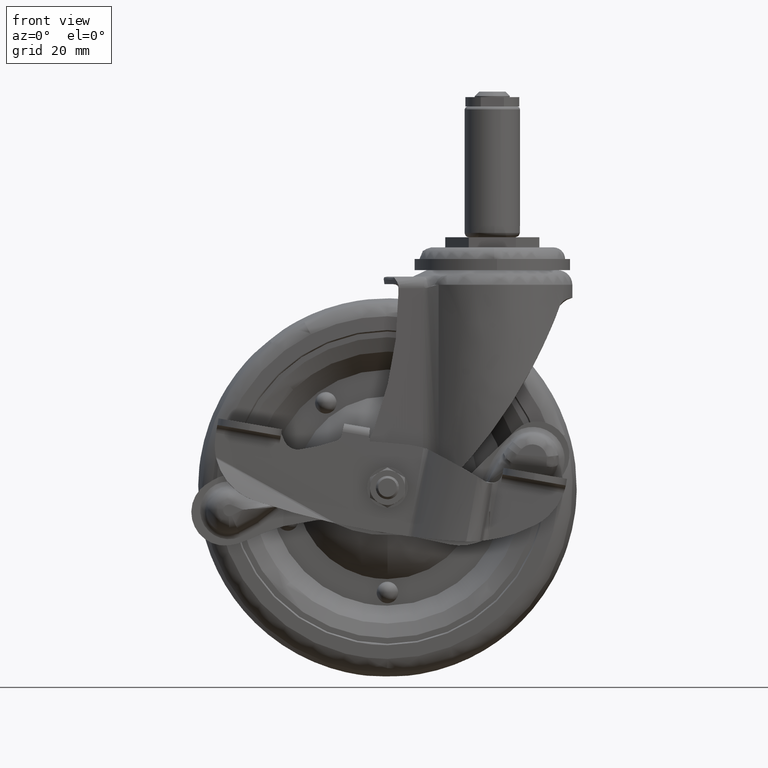
[diagram: clean part render]
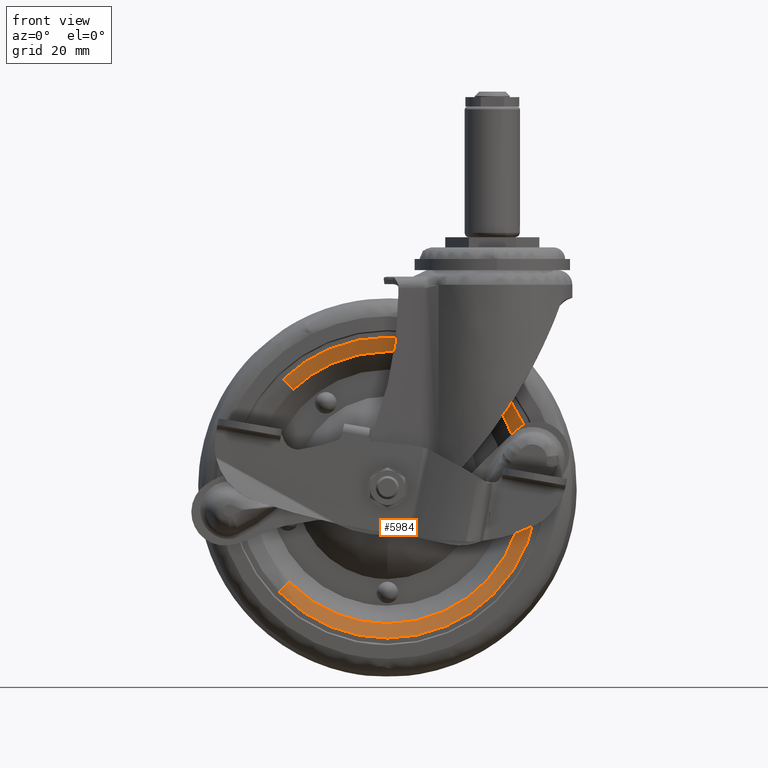
[diagram: same view with one face highlighted and labeled with its STEP entity id]
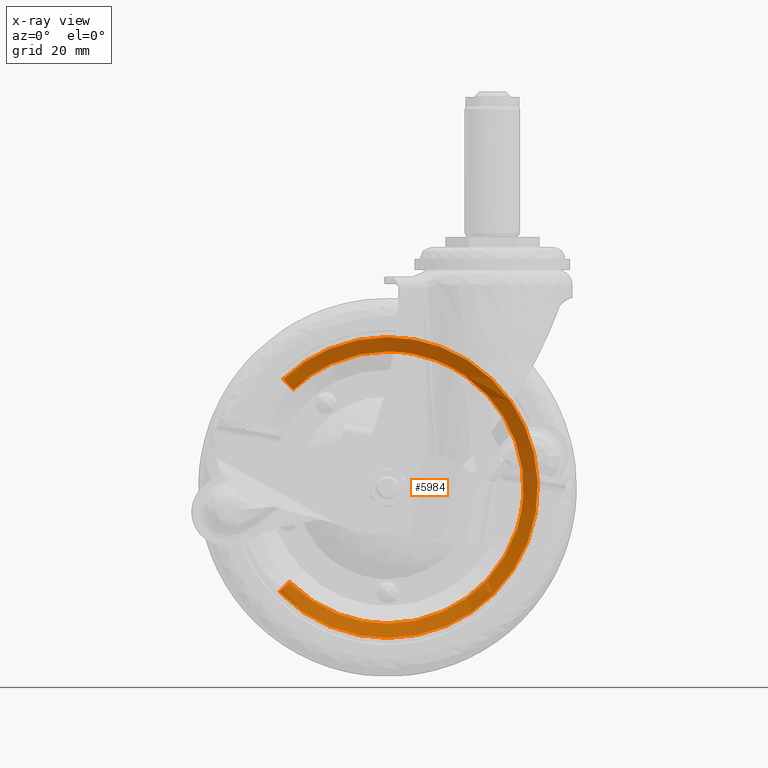
[diagram: x-ray of the same camera — body ghosted, the highlighted face saturated]
A machine part, front view. The second image highlights one B-rep face of the part: STEP entity #5984.
The next image is the same camera in x-ray: the body ghosted, the highlighted face saturated — about 1% of this face is hidden behind the body in this view.
In plain terms, the highlighted face is a freeform B-spline surface patch.
Its self-contained STEP definition (entity closure, byte-faithful):
#3922=CARTESIAN_POINT('',(-19.576463500932370,-9.949747468313262,-42.274356688528300));
#3923=VERTEX_POINT('',#3922);
#3924=CARTESIAN_POINT('',(-36.0,-9.949747468305830,-39.291721154953713));
#3925=VERTEX_POINT('',#3924);
#3926=CARTESIAN_POINT('',(-19.576463500932373,-9.949747468313262,-42.274356688528307));
#3927=CARTESIAN_POINT('',(-27.517397429003616,-9.949747468305832,-39.291721154953706));
#3928=CARTESIAN_POINT('',(-36.0,-9.949747468305830,-39.291721154953713));
#3936=(BOUNDED_CURVE()B_SPLINE_CURVE(2,(#3926,#3927,#3928),.UNSPECIFIED.,.F.,.U.)B_SPLINE_CURVE_WITH_KNOTS((3,3),(0.440284170898375,0.500000000000000),.UNSPECIFIED.)CURVE()GEOMETRIC_REPRESENTATION_ITEM()RATIONAL_B_SPLINE_CURVE((0.893499554635112,0.930038554401244,1.0))REPRESENTATION_ITEM(''));
#3937=EDGE_CURVE('',#3923,#3925,#3936,.T.);
#3939=CARTESIAN_POINT('',(-68.399482437180566,-9.949747469261986,-52.355657792149870));
#3940=VERTEX_POINT('',#3939);
#3941=CARTESIAN_POINT('',(-36.0,-9.949747468305830,-39.291721154953713));
#3942=CARTESIAN_POINT('',(-54.833524656207800,-9.949747468305830,-39.291721154953706));
#3943=CARTESIAN_POINT('',(-68.399482437180566,-9.949747469261986,-52.355657792149870));
#3951=(BOUNDED_CURVE()B_SPLINE_CURVE(2,(#3941,#3942,#3943),.UNSPECIFIED.,.F.,.U.)B_SPLINE_CURVE_WITH_KNOTS((3,3),(0.500000000000000,0.622155737437386),.UNSPECIFIED.)CURVE()GEOMETRIC_REPRESENTATION_ITEM()RATIONAL_B_SPLINE_CURVE((1.0,0.856885651461732,0.853629213191970))REPRESENTATION_ITEM(''));
#3952=EDGE_CURVE('',#3925,#3940,#3951,.T.);
#3954=CARTESIAN_POINT('',(-69.644530207850153,-9.949747469261975,-118.399670437180600));
#3955=VERTEX_POINT('',#3954);
#3971=CARTESIAN_POINT('',(-36.0,-9.949747468305830,-132.708654845046310));
#3972=VERTEX_POINT('',#3971);
#3973=CARTESIAN_POINT('',(-69.644530207850153,-9.949747469261975,-118.399670437180560));
#3974=CARTESIAN_POINT('',(-55.865063346603421,-9.949747468305830,-132.708654845046310));
#3975=CARTESIAN_POINT('',(-36.0,-9.949747468305830,-132.708654845046310));
#3983=(BOUNDED_CURVE()B_SPLINE_CURVE(2,(#3973,#3974,#3975),.UNSPECIFIED.,.F.,.U.)B_SPLINE_CURVE_WITH_KNOTS((3,3),(0.872155737437385,1.0),.UNSPECIFIED.)CURVE()GEOMETRIC_REPRESENTATION_ITEM()RATIONAL_B_SPLINE_CURVE((0.853629213191970,0.850221129724814,1.0))REPRESENTATION_ITEM(''));
#3984=EDGE_CURVE('',#3955,#3972,#3983,.T.);
#3986=CARTESIAN_POINT('',(10.621346138976429,-9.949747468308946,-88.851671684826186));
#3987=VERTEX_POINT('',#3986);
#3988=CARTESIAN_POINT('',(-36.0,-9.949747468305830,-132.708654845046310));
#3989=CARTESIAN_POINT('',(7.938938136953913,-9.949747468305828,-132.708654845046280));
#3990=CARTESIAN_POINT('',(10.621346138976431,-9.949747468308946,-88.851671684826186));
#3998=(BOUNDED_CURVE()B_SPLINE_CURVE(2,(#3988,#3989,#3990),.UNSPECIFIED.,.F.,.U.)B_SPLINE_CURVE_WITH_KNOTS((3,3),(0.0,0.239332962241793),.UNSPECIFIED.)CURVE()GEOMETRIC_REPRESENTATION_ITEM()RATIONAL_B_SPLINE_CURVE((1.0,0.719603993283371,0.976072041672827))REPRESENTATION_ITEM(''));
#3999=EDGE_CURVE('',#3972,#3987,#3998,.T.);
#4077=CARTESIAN_POINT('',(10.621346138976431,-9.949747468308946,-88.851671684826186));
#4078=CARTESIAN_POINT('',(10.708466845046303,-9.949747468305830,-87.427260731580418));
#4079=CARTESIAN_POINT('',(10.708466845046299,-9.949747468305830,-86.000188000000009));
#4080=CARTESIAN_POINT('',(10.708466845046299,-9.949747468305830,-53.649455663063080));
#4081=CARTESIAN_POINT('',(-19.576463500932366,-9.949747468313262,-42.274356688528300));
#4089=(BOUNDED_CURVE()B_SPLINE_CURVE(2,(#4077,#4078,#4079,#4080,#4081),.UNSPECIFIED.,.F.,.U.)B_SPLINE_CURVE_WITH_KNOTS((3,2,3),(0.239332962241793,0.250000000000000,0.440284170898376),.UNSPECIFIED.)CURVE()GEOMETRIC_REPRESENTATION_ITEM()RATIONAL_B_SPLINE_CURVE((0.976072041672827,0.987502787903177,1.0,0.777068226785303,0.893499554635112))REPRESENTATION_ITEM(''));
#4090=EDGE_CURVE('',#3987,#3923,#4089,.T.);
#5873=CARTESIAN_POINT('',(-73.401970466761483,-11.994918257189854,-122.018063053306920));
#5874=CARTESIAN_POINT('',(-37.384095413454553,-11.994918257189857,-159.420033520068500));
#5875=CARTESIAN_POINT('',(0.017875053306949,-11.994918257189854,-123.402158466761520));
#5876=CARTESIAN_POINT('',(37.419845520068442,-11.994918257189857,-87.384283413454583));
#5877=CARTESIAN_POINT('',(1.401970466761482,-11.994918257189854,-49.982312946693035));
#5878=CARTESIAN_POINT('',(-34.615904586545426,-11.994918257189857,-12.580342479931572));
#5879=CARTESIAN_POINT('',(-72.017875053306966,-11.994918257189854,-48.598217533238525));
#5880=CARTESIAN_POINT('',(-71.086445328283887,-12.117475653001740,-119.788226120127290));
#5881=CARTESIAN_POINT('',(-37.298407208156540,-12.117475653001737,-154.874671448411250));
#5882=CARTESIAN_POINT('',(-2.211961879872653,-12.117475653001740,-121.086633328283910));
#5883=CARTESIAN_POINT('',(32.874483448411233,-12.117475653001737,-87.298595208156584));
#5884=CARTESIAN_POINT('',(-0.913554671716116,-12.117475653001740,-52.212149879872634));
#5885=CARTESIAN_POINT('',(-34.701592791843417,-12.117475653001737,-17.125704551588768));
#5886=CARTESIAN_POINT('',(-69.788038120127354,-12.117475653001740,-50.913742671716129));
#5887=CARTESIAN_POINT('',(-69.511459746024570,-9.757838825019192,-118.271524374079230));
#5888=CARTESIAN_POINT('',(-37.240123371945316,-9.757838825019192,-151.782984120103780));
#5889=CARTESIAN_POINT('',(-3.728663625920759,-9.757838825019192,-119.511647746024590));
#5890=CARTESIAN_POINT('',(29.782796120103786,-9.757838825019192,-87.240311371945353));
#5891=CARTESIAN_POINT('',(-2.488540253975458,-9.757838825019192,-53.728851625920747));
#5892=CARTESIAN_POINT('',(-34.759876628054649,-9.757838825019192,-20.217391879896230));
#5893=CARTESIAN_POINT('',(-68.271336374079254,-9.757838825019192,-52.488728253975466));
#5901=(BOUNDED_SURFACE()B_SPLINE_SURFACE(2,2,((#5873,#5880,#5887),(#5874,#5881,#5888),(#5875,#5882,#5889),(#5876,#5883,#5890),(#5877,#5884,#5891),(#5878,#5885,#5892),(#5879,#5886,#5893)),.UNSPECIFIED.,.F.,.F.,.U.)B_SPLINE_SURFACE_WITH_KNOTS((3,2,2,3),(3,3),(0.0,86.031982893572490,172.063965787145010,258.095948680717530),(0.0,6.125955358099176),.UNSPECIFIED.)GEOMETRIC_REPRESENTATION_ITEM()RATIONAL_B_SPLINE_SURFACE(((0.930128281341079,0.845728310048117,0.931397597509836),(0.657700015109666,0.598020223076462,0.658597557180064),(0.930128281341079,0.845728310048117,0.931397597509836),(0.657700015109666,0.598020223076462,0.658597557180064),(0.930128281341079,0.845728310048117,0.931397597509836),(0.657700015109666,0.598020223076462,0.658597557180064),(0.930128281341079,0.845728310048117,0.931397597509836)))REPRESENTATION_ITEM('')SURFACE());
#5902=CARTESIAN_POINT('',(-73.209877977453786,-12.0,-121.833079128887310));
#5903=VERTEX_POINT('',#5902);
#5904=CARTESIAN_POINT('',(-36.0,-12.0,-137.658402313352210));
#5905=VERTEX_POINT('',#5904);
#5906=CARTESIAN_POINT('',(-73.209877977453786,-12.000000000000005,-121.833079128887360));
#5907=CARTESIAN_POINT('',(-57.970185900366907,-12.000000000000004,-137.658402313352160));
#5908=CARTESIAN_POINT('',(-36.0,-12.0,-137.658402313352210));
#5916=(BOUNDED_CURVE()B_SPLINE_CURVE(2,(#5906,#5907,#5908),.UNSPECIFIED.,.F.,.U.)B_SPLINE_CURVE_WITH_KNOTS((3,3),(0.872155737437424,1.0),.UNSPECIFIED.)CURVE()GEOMETRIC_REPRESENTATION_ITEM()RATIONAL_B_SPLINE_CURVE((0.853629213191968,0.850221129724860,1.0))REPRESENTATION_ITEM(''));
#5917=EDGE_CURVE('',#5903,#5905,#5916,.T.);
#5918=ORIENTED_EDGE('',*,*,#5917,.T.);
#5919=CARTESIAN_POINT('',(-36.0,-12.0,-34.341973686647812));
#5920=VERTEX_POINT('',#5919);
#5921=CARTESIAN_POINT('',(-36.0,-12.0,-137.658402313352210));
#5922=CARTESIAN_POINT('',(15.658214313352198,-12.0,-137.658402313352180));
#5923=CARTESIAN_POINT('',(15.658214313352200,-12.0,-86.000188000000009));
#5924=CARTESIAN_POINT('',(15.658214313352198,-12.0,-34.341973686647812));
#5925=CARTESIAN_POINT('',(-36.0,-12.0,-34.341973686647812));
#5933=(BOUNDED_CURVE()B_SPLINE_CURVE(2,(#5921,#5922,#5923,#5924,#5925),.UNSPECIFIED.,.F.,.U.)B_SPLINE_CURVE_WITH_KNOTS((3,2,3),(0.0,0.250000000000000,0.500000000000000),.UNSPECIFIED.)CURVE()GEOMETRIC_REPRESENTATION_ITEM()RATIONAL_B_SPLINE_CURVE((1.0,0.707106781186548,1.0,0.707106781186548,1.0))REPRESENTATION_ITEM(''));
#5934=EDGE_CURVE('',#5905,#5920,#5933,.T.);
#5935=ORIENTED_EDGE('',*,*,#5934,.T.);
#5936=CARTESIAN_POINT('',(-71.832891128887340,-12.0,-48.790310022546223));
#5937=VERTEX_POINT('',#5936);
#5938=CARTESIAN_POINT('',(-36.0,-12.0,-34.341973686647812));
#5939=CARTESIAN_POINT('',(-56.829333923421622,-12.000000000000005,-34.341973686647805));
#5940=CARTESIAN_POINT('',(-71.832891128887340,-11.999999999999995,-48.790310022546223));
#5948=(BOUNDED_CURVE()B_SPLINE_CURVE(2,(#5938,#5939,#5940),.UNSPECIFIED.,.F.,.U.)B_SPLINE_CURVE_WITH_KNOTS((3,3),(0.500000000000000,0.622155737437424),.UNSPECIFIED.)CURVE()GEOMETRIC_REPRESENTATION_ITEM()RATIONAL_B_SPLINE_CURVE((1.0,0.856885651461688,0.853629213191968))REPRESENTATION_ITEM(''));
#5949=EDGE_CURVE('',#5920,#5937,#5948,.T.);
#5950=ORIENTED_EDGE('',*,*,#5949,.T.);
#5951=CARTESIAN_POINT('',(-71.832891128887340,-12.0,-48.790310022546223));
#5952=CARTESIAN_POINT('',(-69.821646882346755,-11.999999997654374,-50.878842391505401));
#5953=CARTESIAN_POINT('',(-68.399482437180566,-9.949747469261986,-52.355657792149870));
#5961=(BOUNDED_CURVE()B_SPLINE_CURVE(2,(#5951,#5952,#5953),.UNSPECIFIED.,.F.,.U.)B_SPLINE_CURVE_WITH_KNOTS((3,3),(-1.556175678129881,-0.434617038430990),.UNSPECIFIED.)CURVE()GEOMETRIC_REPRESENTATION_ITEM()RATIONAL_B_SPLINE_CURVE((0.922813124635538,0.853101096618575,0.923967181575293))REPRESENTATION_ITEM(''));
#5962=EDGE_CURVE('',#5937,#3940,#5961,.T.);
#5963=ORIENTED_EDGE('',*,*,#5962,.T.);
#5964=ORIENTED_EDGE('',*,*,#3952,.F.);
#5965=ORIENTED_EDGE('',*,*,#3937,.F.);
#5966=ORIENTED_EDGE('',*,*,#4090,.F.);
#5967=ORIENTED_EDGE('',*,*,#3999,.F.);
#5968=ORIENTED_EDGE('',*,*,#3984,.F.);
#5969=CARTESIAN_POINT('',(-73.209877977453786,-12.000000000000004,-121.833079128887360));
#5970=CARTESIAN_POINT('',(-71.121345608494593,-11.999999997654367,-119.821834882346810));
#5971=CARTESIAN_POINT('',(-69.644530207850153,-9.949747469261975,-118.399670437180620));
#5979=(BOUNDED_CURVE()B_SPLINE_CURVE(2,(#5969,#5970,#5971),.UNSPECIFIED.,.F.,.U.)B_SPLINE_CURVE_WITH_KNOTS((3,3),(-1.556175678129880,-0.434617038430984),.UNSPECIFIED.)CURVE()GEOMETRIC_REPRESENTATION_ITEM()RATIONAL_B_SPLINE_CURVE((0.922813124635538,0.853101096618574,0.923967181575294))REPRESENTATION_ITEM(''));
#5980=EDGE_CURVE('',#5903,#3955,#5979,.T.);
#5981=ORIENTED_EDGE('',*,*,#5980,.F.);
#5982=EDGE_LOOP('',(#5918,#5935,#5950,#5963,#5964,#5965,#5966,#5967,#5968,#5981));
#5983=FACE_OUTER_BOUND('',#5982,.T.);
#5984=ADVANCED_FACE('',(#5983),#5901,.T.);